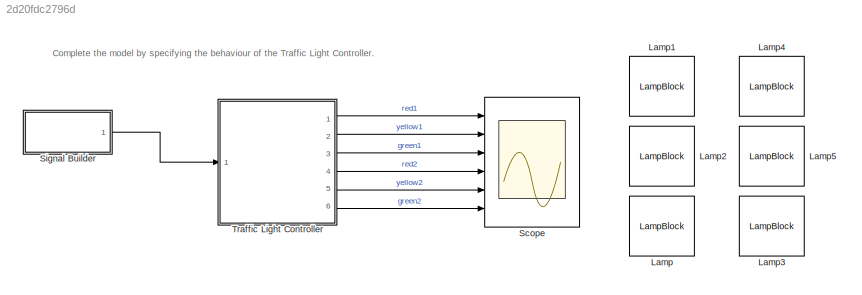
MODEL slx_2d20fdc2796d
KIND model
CONFIG AbsTol = auto
CONFIG EnableMultiTasking = off
CONFIG FixedStep = auto
CONFIG MaxStep = auto
CONFIG MinStep = auto
CONFIG RelTol = 1e-3
CONFIG SampleTimeConstraint = Unconstrained
CONFIG SolverName = VariableStepAuto
CONFIG StartTime = 0.0
CONFIG StopTime = 60
WORKSPACE source: mxarray member
WORKSPACE courseObject: object (value not decoded)
BLOCK [LampBlock] Lamp
BLOCK [LampBlock] Lamp1
BLOCK [LampBlock] Lamp2
BLOCK [LampBlock] Lamp3
BLOCK [LampBlock] Lamp4
BLOCK [LampBlock] Lamp5
BLOCK [Scope] Scope
  Floating = off
  NumInputPorts = 6
  Ports = [6]
  ScopeSpecificationString = Simulink.scopes.TimeScopeBlockCfg('CurrentConfiguration', extmgr.ConfigurationSet(extmgr.Configuration('Core','General UI',true),extmgr.Configuration('Core','Source UI',true),extmgr.Configuration('Sources','WiredSimulink',true),extmgr.Configuration('Visuals','Time Domain',true,'SerializedDisplays',{struct('MinYLimReal','-0.125','MaxYLimReal','1.125','YLabelReal','','MinYLimMag','0.00000','MaxYLimM...<+5485ch>
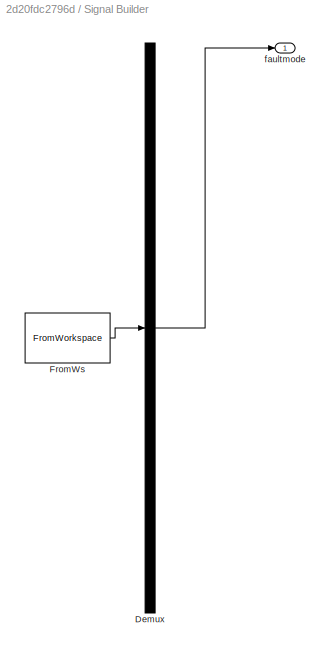
BLOCK [SubSystem] Signal Builder
  ClipboardFcn = sigbuilder_block('clipboard');
  CloseFcn = sigbuilder_block('close');
  ContinueFcn = sigbuilder_block('continue');
  CopyFcn = sigbuilder_block('copy');
  DeleteFcn = sigbuilder_block('delete');
  LoadFcn = sigbuilder_block('load');
  MaskHideContents = on
  ModelCloseFcn = sigbuilder_block('modelClose');
  NameChangeFcn = sigbuilder_block('namechange');
  OpenFcn = sigbuilder_block('open',[4.8 22.8 1142.4 538.8 ]);
  PauseFcn = sigbuilder_block('pause');
  Ports = [0, 1]
  PreSaveFcn = sigbuilder_block('preSave');
  RequestExecContextInheritance = off
  StartFcn = sigbuilder_block('start');
  StopFcn = sigbuilder_block('stop');
  Tag = STV Subsys
BLOCK [Demux] Signal Builder/Demux
  DisplayOption = none
  Outputs = 1
  Ports = [1, 1]
  Tag = STV Demux
BLOCK [FromWorkspace] Signal Builder/FromWs
  Tag = STV FromWs
  VariableName = tuvar
BLOCK [Outport] Signal Builder/faultmode
  Tag = STV Outport
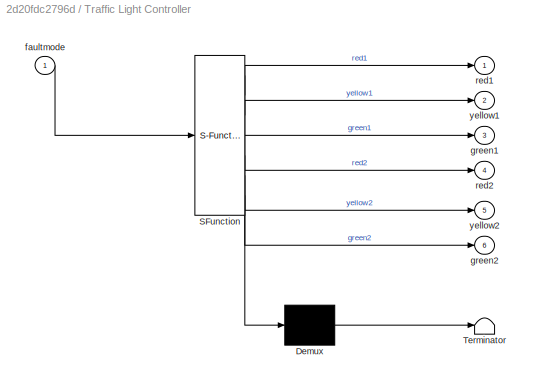
BLOCK [SubSystem] Traffic Light Controller
  ErrorFcn = Stateflow.Translate.translate
  PermitHierarchicalResolution = ExplicitOnly
  Ports = [1, 6]
  RequestExecContextInheritance = off
  SFBlockType = Chart
  TreatAsAtomicUnit = on
BLOCK [Demux] Traffic Light Controller/ Demux 
  Outputs = 1
  Ports = [1, 1]
BLOCK [S-Function] Traffic Light Controller/ SFunction 
  EnableBusSupport = on
  FunctionName = sf_sfun
  PortCounts = [1 7]
  Ports = [1, 7]
  SFcnIsStateOwnerBlock = off
  SFunctionDeploymentMode = off
  Tag = Stateflow S-Function 3
BLOCK [Terminator] Traffic Light Controller/ Terminator 
BLOCK [Inport] Traffic Light Controller/faultmode
BLOCK [Outport] Traffic Light Controller/green1
  Port = 3
  VectorParamsAs1DForOutWhenUnconnected = off
BLOCK [Outport] Traffic Light Controller/green2
  Port = 6
BLOCK [Outport] Traffic Light Controller/red1
  VectorParamsAs1DForOutWhenUnconnected = off
BLOCK [Outport] Traffic Light Controller/red2
  Port = 4
BLOCK [Outport] Traffic Light Controller/yellow1
  Port = 2
  VectorParamsAs1DForOutWhenUnconnected = off
BLOCK [Outport] Traffic Light Controller/yellow2
  Port = 5
ANNOTATION (root): Complete the model by specifying the behaviour of the Traffic Light Controller.
LINE Signal Builder:1 -> Traffic Light Controller:1
LINE Traffic Light Controller:1 -> Scope:1
LINE Traffic Light Controller:2 -> Scope:2
LINE Traffic Light Controller:3 -> Scope:3
LINE Traffic Light Controller:4 -> Scope:4
LINE Traffic Light Controller:5 -> Scope:5
LINE Traffic Light Controller:6 -> Scope:6
CHART Traffic Light Controller states=9 transitions=12
  STATE_LABEL 'faultmodeOff'
  STATE_LABEL 'Road1Go\nentry:\ngreen1 = 1;\nred2 = 1;\nred1 = 0;\nyellow2 = 0;'
  STATE_LABEL 'Road1Wait\nentry:\ngreen1 = 0;\nyellow1 = 1;\nred2 = 1;\n'
  STATE_LABEL 'Start\nentry:\nred1 = 1;\nred2 = 1;\nyellow1 = 0;\nyellow2 = 0;\n'
  STATE_LABEL 'Road2Wait\nentry:\ngreen2 = 0;\nyellow2 = 1;\nred1 = 1;\n'
  STATE_LABEL 'Road2Go\nentry:\nyellow1 = 0;\nred1 = 1;\ngreen2 = 1;\nred2 = 0;\n'
  STATE_LABEL 'after(5,sec)'
  STATE_LABEL 'after(8,sec)'
  STATE_LABEL 'after(2,sec)'
  STATE_LABEL 'after(2,sec)'
  STATE_LABEL 'after(8,sec)'
  STATE_LABEL 'Road1Go\nentry:\ngreen1 = 1;\nred2 = 1;\nred1 = 0;\nyellow2 = 0;'
  STATE_LABEL 'Road1Wait\nentry:\ngreen1 = 0;\nyellow1 = 1;\nred2 = 1;\n'
  STATE_LABEL 'Start\nentry:\nred1 = 1;\nred2 = 1;\nyellow1 = 0;\nyellow2 = 0;\n'
  STATE_LABEL 'Road2Wait\nentry:\ngreen2 = 0;\nyellow2 = 1;\nred1 = 1;\n'
  STATE_LABEL 'Road2Go\nentry:\nyellow1 = 0;\nred1 = 1;\ngreen2 = 1;\nred2 = 0;\n'
  STATE_LABEL 'faultmodeOn'
  STATE_LABEL 'flashOn\nentry:\nyellow1 = 1;\nyellow2 = 1;\ngreen1 = 0;\ngreen2 = 0;\nred1 = 0;\nred2 = 0;\n'
  STATE_LABEL 'flashOff\nentry:\nyellow1 = 0;\nyellow2 = 0;'
  STATE_LABEL 'after(1,sec)'
  STATE_LABEL 'after(1,sec)'
  STATE_LABEL 'flashOn\nentry:\nyellow1 = 1;\nyellow2 = 1;\ngreen1 = 0;\ngreen2 = 0;\nred1 = 0;\nred2 = 0;\n'
  STATE_LABEL 'flashOff\nentry:\nyellow1 = 0;\nyellow2 = 0;'
CHART  states=0 transitions=0
